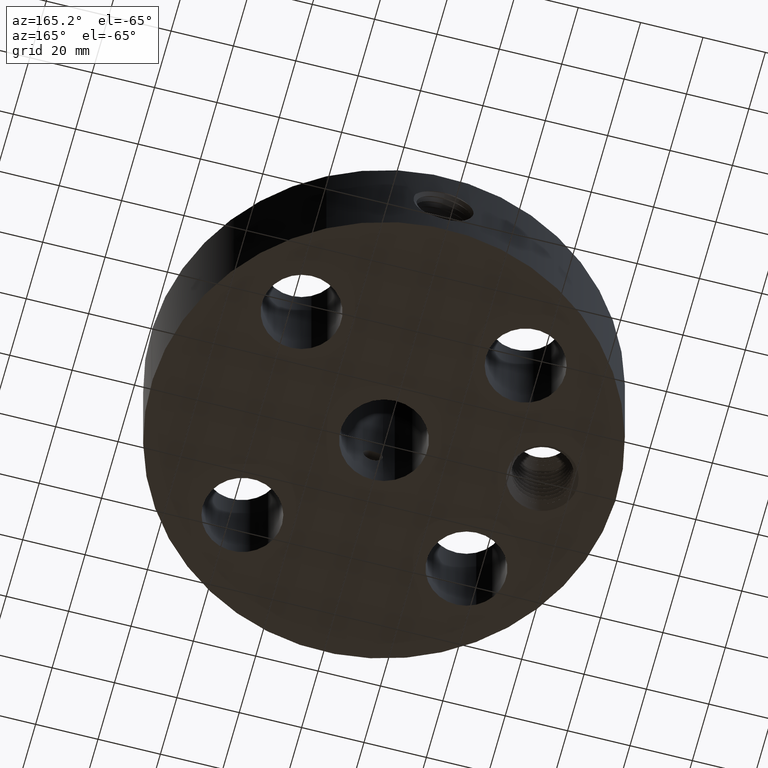
[diagram: clean part render]
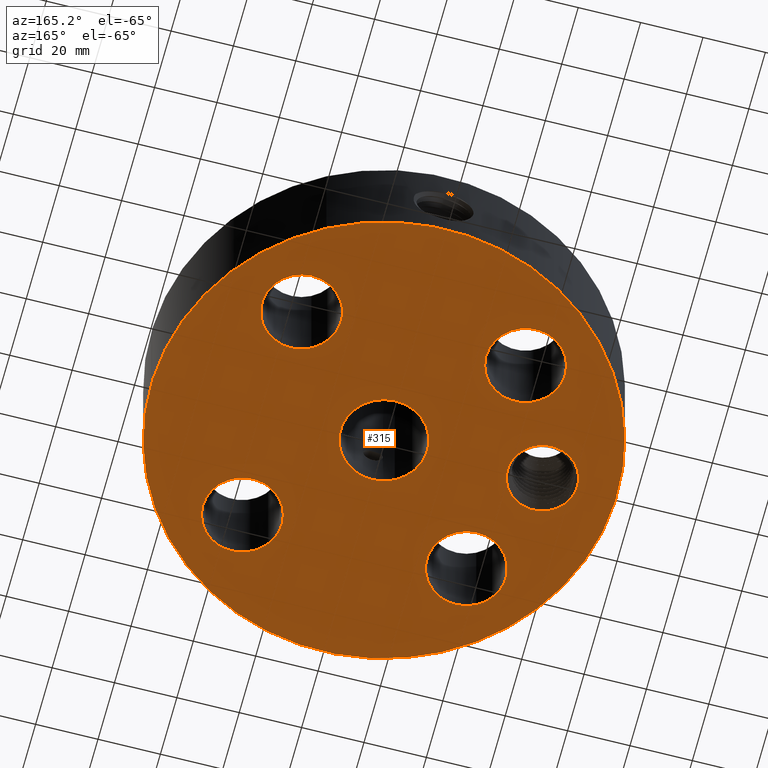
[diagram: same view with one face highlighted and labeled with its STEP entity id]
A machine part, auxiliary view. The second image highlights one B-rep face of the part: STEP entity #315.
In plain terms, the highlighted planar face has unit normal (0, 0, -1).
Its self-contained STEP definition (entity closure, byte-faithful):
#42=AXIS2_PLACEMENT_3D('Circle Axis2P3D',#40,#41,$) ;
#196=AXIS2_PLACEMENT_3D('Plane Axis2P3D',#193,#194,#195) ;
#200=AXIS2_PLACEMENT_3D('Circle Axis2P3D',#198,#199,$) ;
#209=AXIS2_PLACEMENT_3D('Circle Axis2P3D',#207,#208,$) ;
#218=AXIS2_PLACEMENT_3D('Circle Axis2P3D',#216,#217,$) ;
#227=AXIS2_PLACEMENT_3D('Circle Axis2P3D',#225,#226,$) ;
#236=AXIS2_PLACEMENT_3D('Circle Axis2P3D',#234,#235,$) ;
#245=AXIS2_PLACEMENT_3D('Circle Axis2P3D',#243,#244,$) ;
#254=AXIS2_PLACEMENT_3D('Circle Axis2P3D',#252,#253,$) ;
#263=AXIS2_PLACEMENT_3D('Circle Axis2P3D',#261,#262,$) ;
#272=AXIS2_PLACEMENT_3D('Circle Axis2P3D',#270,#271,$) ;
#281=AXIS2_PLACEMENT_3D('Circle Axis2P3D',#279,#280,$) ;
#290=AXIS2_PLACEMENT_3D('Circle Axis2P3D',#288,#289,$) ;
#299=AXIS2_PLACEMENT_3D('Circle Axis2P3D',#297,#298,$) ;
#308=AXIS2_PLACEMENT_3D('Circle Axis2P3D',#306,#307,$) ;
#40=CARTESIAN_POINT('Axis2P3D Location',(0.,0.,0.250000000001)) ;
#44=CARTESIAN_POINT('Vertex',(-1.4095110835,-2.58009273197,0.250000000001)) ;
#46=CARTESIAN_POINT('Vertex',(1.4095110835,2.58009273197,0.250000000001)) ;
#193=CARTESIAN_POINT('Axis2P3D Location',(0.,0.548500000002,0.250000000001)) ;
#198=CARTESIAN_POINT('Axis2P3D Location',(0.,0.,0.250000000001)) ;
#207=CARTESIAN_POINT('Axis2P3D Location',(-2.00000000001,6.99353086378E-017,0.250000000001)) ;
#211=CARTESIAN_POINT('Vertex',(-1.6114064416,-0.212289628495,0.250000000001)) ;
#213=CARTESIAN_POINT('Vertex',(-2.38859355841,0.212289628495,0.250000000001)) ;
#216=CARTESIAN_POINT('Axis2P3D Location',(-2.00000000001,6.99353086378E-017,0.250000000001)) ;
#225=CARTESIAN_POINT('Axis2P3D Location',(1.41421356238,-1.41421356238,0.250000000001)) ;
#229=CARTESIAN_POINT('Vertex',(1.85300484333,-1.65392633168,0.250000000001)) ;
#231=CARTESIAN_POINT('Vertex',(0.975422281432,-1.17450079308,0.250000000001)) ;
#234=CARTESIAN_POINT('Axis2P3D Location',(1.41421356238,-1.41421356238,0.250000000001)) ;
#243=CARTESIAN_POINT('Axis2P3D Location',(0.,0.,0.250000000001)) ;
#247=CARTESIAN_POINT('Vertex',(0.262964907925,0.481354035199,0.250000000001)) ;
#249=CARTESIAN_POINT('Vertex',(-0.262964907925,-0.481354035199,0.250000000001)) ;
#252=CARTESIAN_POINT('Axis2P3D Location',(0.,0.,0.250000000001)) ;
#261=CARTESIAN_POINT('Axis2P3D Location',(-1.41421356238,-1.41421356238,0.250000000001)) ;
#265=CARTESIAN_POINT('Vertex',(-1.17450079308,-0.975422281432,0.250000000001)) ;
#267=CARTESIAN_POINT('Vertex',(-1.65392633168,-1.85300484333,0.250000000001)) ;
#270=CARTESIAN_POINT('Axis2P3D Location',(-1.41421356238,-1.41421356238,0.250000000001)) ;
#279=CARTESIAN_POINT('Axis2P3D Location',(-1.41421356238,1.41421356238,0.250000000001)) ;
#283=CARTESIAN_POINT('Vertex',(-0.975422281432,1.17450079308,0.250000000001)) ;
#285=CARTESIAN_POINT('Vertex',(-1.85300484333,1.65392633168,0.250000000001)) ;
#288=CARTESIAN_POINT('Axis2P3D Location',(-1.41421356238,1.41421356238,0.250000000001)) ;
#297=CARTESIAN_POINT('Axis2P3D Location',(1.41421356238,1.41421356238,0.250000000001)) ;
#301=CARTESIAN_POINT('Vertex',(1.17450079308,0.975422281432,0.250000000001)) ;
#303=CARTESIAN_POINT('Vertex',(1.65392633168,1.85300484333,0.250000000001)) ;
#306=CARTESIAN_POINT('Axis2P3D Location',(1.41421356238,1.41421356238,0.250000000001)) ;
#41=DIRECTION('Axis2P3D Direction',(0.,0.,-0.0393700787402)) ;
#194=DIRECTION('Axis2P3D Direction',(0.,0.,-0.0393700787402)) ;
#195=DIRECTION('Axis2P3D XDirection',(0.0393700787402,0.,0.)) ;
#199=DIRECTION('Axis2P3D Direction',(0.,0.,-0.0393700787402)) ;
#208=DIRECTION('Axis2P3D Direction',(0.,0.,-0.0393700787402)) ;
#217=DIRECTION('Axis2P3D Direction',(0.,0.,-0.0393700787402)) ;
#226=DIRECTION('Axis2P3D Direction',(0.,0.,-0.0393700787402)) ;
#235=DIRECTION('Axis2P3D Direction',(0.,0.,-0.0393700787402)) ;
#244=DIRECTION('Axis2P3D Direction',(0.,0.,-0.0393700787402)) ;
#253=DIRECTION('Axis2P3D Direction',(0.,0.,-0.0393700787402)) ;
#262=DIRECTION('Axis2P3D Direction',(0.,0.,-0.0393700787402)) ;
#271=DIRECTION('Axis2P3D Direction',(0.,0.,-0.0393700787402)) ;
#280=DIRECTION('Axis2P3D Direction',(0.,0.,-0.0393700787402)) ;
#289=DIRECTION('Axis2P3D Direction',(0.,0.,-0.0393700787402)) ;
#298=DIRECTION('Axis2P3D Direction',(0.,0.,-0.0393700787402)) ;
#307=DIRECTION('Axis2P3D Direction',(0.,0.,-0.0393700787402)) ;
#204=ORIENTED_EDGE('',*,*,#48,.T.) ;
#205=ORIENTED_EDGE('',*,*,#202,.T.) ;
#222=ORIENTED_EDGE('',*,*,#215,.F.) ;
#223=ORIENTED_EDGE('',*,*,#220,.F.) ;
#240=ORIENTED_EDGE('',*,*,#233,.F.) ;
#241=ORIENTED_EDGE('',*,*,#238,.F.) ;
#258=ORIENTED_EDGE('',*,*,#251,.F.) ;
#259=ORIENTED_EDGE('',*,*,#256,.F.) ;
#276=ORIENTED_EDGE('',*,*,#269,.F.) ;
#277=ORIENTED_EDGE('',*,*,#274,.F.) ;
#294=ORIENTED_EDGE('',*,*,#287,.F.) ;
#295=ORIENTED_EDGE('',*,*,#292,.F.) ;
#312=ORIENTED_EDGE('',*,*,#305,.F.) ;
#313=ORIENTED_EDGE('',*,*,#310,.F.) ;
#224=FACE_BOUND('',#221,.T.) ;
#242=FACE_BOUND('',#239,.T.) ;
#260=FACE_BOUND('',#257,.T.) ;
#278=FACE_BOUND('',#275,.T.) ;
#296=FACE_BOUND('',#293,.T.) ;
#314=FACE_BOUND('',#311,.T.) ;
#315=ADVANCED_FACE('PartBody',(#206,#224,#242,#260,#278,#296,#314),#197,.T.) ;
#43=CIRCLE('generated circle',#42,2.94000000001) ;
#201=CIRCLE('generated circle',#200,2.94000000001) ;
#210=CIRCLE('generated circle',#209,0.442800000002) ;
#219=CIRCLE('generated circle',#218,0.442800000002) ;
#228=CIRCLE('generated circle',#227,0.500000000002) ;
#237=CIRCLE('generated circle',#236,0.500000000002) ;
#246=CIRCLE('generated circle',#245,0.548500000002) ;
#255=CIRCLE('generated circle',#254,0.548500000002) ;
#264=CIRCLE('generated circle',#263,0.500000000002) ;
#273=CIRCLE('generated circle',#272,0.500000000002) ;
#282=CIRCLE('generated circle',#281,0.500000000002) ;
#291=CIRCLE('generated circle',#290,0.500000000002) ;
#300=CIRCLE('generated circle',#299,0.500000000002) ;
#309=CIRCLE('generated circle',#308,0.500000000002) ;
#48=EDGE_CURVE('',#45,#47,#43,.T.) ;
#202=EDGE_CURVE('',#47,#45,#201,.T.) ;
#215=EDGE_CURVE('',#212,#214,#210,.T.) ;
#220=EDGE_CURVE('',#214,#212,#219,.T.) ;
#233=EDGE_CURVE('',#230,#232,#228,.T.) ;
#238=EDGE_CURVE('',#232,#230,#237,.T.) ;
#251=EDGE_CURVE('',#248,#250,#246,.T.) ;
#256=EDGE_CURVE('',#250,#248,#255,.T.) ;
#269=EDGE_CURVE('',#266,#268,#264,.T.) ;
#274=EDGE_CURVE('',#268,#266,#273,.T.) ;
#287=EDGE_CURVE('',#284,#286,#282,.T.) ;
#292=EDGE_CURVE('',#286,#284,#291,.T.) ;
#305=EDGE_CURVE('',#302,#304,#300,.T.) ;
#310=EDGE_CURVE('',#304,#302,#309,.T.) ;
#203=EDGE_LOOP('',(#204,#205)) ;
#221=EDGE_LOOP('',(#222,#223)) ;
#239=EDGE_LOOP('',(#240,#241)) ;
#257=EDGE_LOOP('',(#258,#259)) ;
#275=EDGE_LOOP('',(#276,#277)) ;
#293=EDGE_LOOP('',(#294,#295)) ;
#311=EDGE_LOOP('',(#312,#313)) ;
#206=FACE_OUTER_BOUND('',#203,.T.) ;
#197=PLANE('',#196) ;
#45=VERTEX_POINT('',#44) ;
#47=VERTEX_POINT('',#46) ;
#212=VERTEX_POINT('',#211) ;
#214=VERTEX_POINT('',#213) ;
#230=VERTEX_POINT('',#229) ;
#232=VERTEX_POINT('',#231) ;
#248=VERTEX_POINT('',#247) ;
#250=VERTEX_POINT('',#249) ;
#266=VERTEX_POINT('',#265) ;
#268=VERTEX_POINT('',#267) ;
#284=VERTEX_POINT('',#283) ;
#286=VERTEX_POINT('',#285) ;
#302=VERTEX_POINT('',#301) ;
#304=VERTEX_POINT('',#303) ;